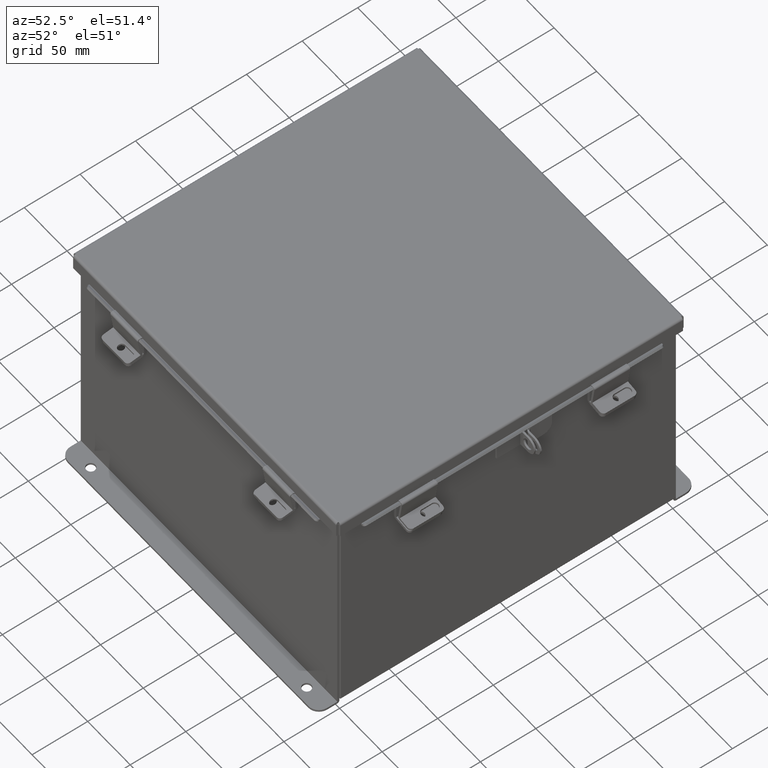
[diagram: clean part render]
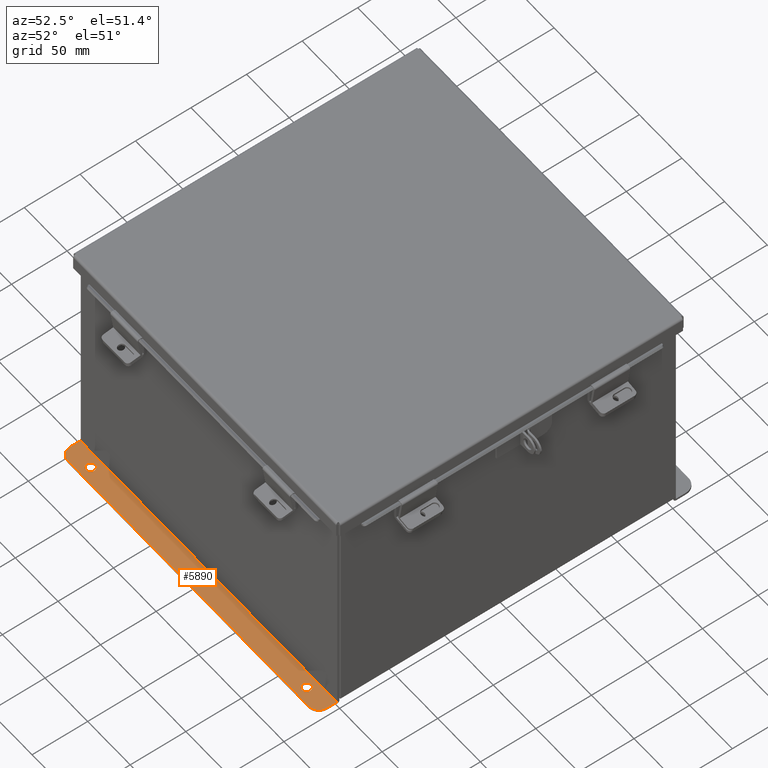
[diagram: same view with one face highlighted and labeled with its STEP entity id]
A machine part, auxiliary view. The second image highlights one B-rep face of the part: STEP entity #5890.
In plain terms, the highlighted planar face has unit normal (0, -0, 1).
Its self-contained STEP definition (entity closure, byte-faithful):
#396 = ORIENTED_EDGE ( 'NONE', *, *, #2116, .T. ) ;
#419 = CARTESIAN_POINT ( 'NONE',  ( -4.987800000000000900, 0.5188000000000003700, -4.112300000000001200 ) ) ;
#668 = VERTEX_POINT ( 'NONE', #15378 ) ;
#686 = DIRECTION ( 'NONE',  ( 0.0000000000000000000, -1.000000000000000000, 4.370956789862820400E-015 ) ) ;
#917 = ORIENTED_EDGE ( 'NONE', *, *, #16845, .T. ) ;
#1060 = CARTESIAN_POINT ( 'NONE',  ( 5.925299999999999100, 0.7378000000000002300, -4.112300000000002100 ) ) ;
#1124 = CIRCLE ( 'NONE', #11407, 0.3750000000000000600 ) ;
#1273 = EDGE_CURVE ( 'NONE', #17231, #668, #1124, .T. ) ;
#1427 = EDGE_CURVE ( 'NONE', #8635, #668, #6636, .T. ) ;
#1728 = CARTESIAN_POINT ( 'NONE',  ( 5.925299999999999100, 1.577762228432578300E-017, -4.112299999999999400 ) ) ;
#1750 = VERTEX_POINT ( 'NONE', #6197 ) ;
#1963 = ORIENTED_EDGE ( 'NONE', *, *, #1273, .T. ) ;
#2116 = EDGE_CURVE ( 'NONE', #7302, #9590, #2702, .T. ) ;
#2206 = VERTEX_POINT ( 'NONE', #12632 ) ;
#2702 = CIRCLE ( 'NONE', #3721, 0.1560000000000001700 ) ;
#2837 = EDGE_LOOP ( 'NONE', ( #7515, #917 ) ) ;
#2937 = AXIS2_PLACEMENT_3D ( 'NONE', #12196, #6806, #16270 ) ;
#2966 = ORIENTED_EDGE ( 'NONE', *, *, #1427, .F. ) ;
#2995 = CARTESIAN_POINT ( 'NONE',  ( -4.987800000000000900, 0.3628000000000001800, -4.112300000000001200 ) ) ;
#3101 = DIRECTION ( 'NONE',  ( -0.0000000000000000000, -1.000000000000000000, 3.702694488566362300E-015 ) ) ;
#3262 = VERTEX_POINT ( 'NONE', #12844 ) ;
#3549 = AXIS2_PLACEMENT_3D ( 'NONE', #6160, #15623, #7526 ) ;
#3721 = AXIS2_PLACEMENT_3D ( 'NONE', #12461, #4339, #13798 ) ;
#3820 = CARTESIAN_POINT ( 'NONE',  ( 4.987799999999998200, 0.2067999999999999800, -4.112300000000000300 ) ) ;
#4059 = EDGE_CURVE ( 'NONE', #9590, #7302, #15152, .T. ) ;
#4339 = DIRECTION ( 'NONE',  ( -0.0000000000000000000, -3.702694488566362300E-015, -1.000000000000000000 ) ) ;
#4368 = DIRECTION ( 'NONE',  ( 0.0000000000000000000, -1.000000000000000000, 3.502369222646487400E-015 ) ) ;
#5230 = FACE_BOUND ( 'NONE', #6625, .T. ) ;
#5837 = DIRECTION ( 'NONE',  ( 0.0000000000000000000, 3.702694488566362300E-015, 1.000000000000000000 ) ) ;
#5866 = CIRCLE ( 'NONE', #11917, 0.3750000000000000600 ) ;
#5890 = ADVANCED_FACE ( 'NONE', ( #16037, #5230, #12009 ), #8091, .T. ) ;
#6160 = CARTESIAN_POINT ( 'NONE',  ( -4.987800000000000900, 0.3628000000000001800, -4.112300000000001200 ) ) ;
#6197 = CARTESIAN_POINT ( 'NONE',  ( -4.987800000000000900, 0.2067999999999999800, -4.112300000000000300 ) ) ;
#6314 = CARTESIAN_POINT ( 'NONE',  ( 4.987799999999998200, 0.3628000000000001800, -4.112300000000001200 ) ) ;
#6625 = EDGE_LOOP ( 'NONE', ( #396, #10080 ) ) ;
#6636 = LINE ( 'NONE', #15772, #13818 ) ;
#6806 = DIRECTION ( 'NONE',  ( 0.0000000000000000000, 3.702694488566362300E-015, 1.000000000000000000 ) ) ;
#6909 = EDGE_CURVE ( 'NONE', #2206, #10669, #5866, .T. ) ;
#6982 = CARTESIAN_POINT ( 'NONE',  ( -5.550299999999999100, 0.7378000000000002300, -4.112300000000002100 ) ) ;
#7302 = VERTEX_POINT ( 'NONE', #13318 ) ;
#7430 = AXIS2_PLACEMENT_3D ( 'NONE', #2995, #12487, #4368 ) ;
#7515 = ORIENTED_EDGE ( 'NONE', *, *, #12546, .T. ) ;
#7526 = DIRECTION ( 'NONE',  ( 0.0000000000000000000, -1.000000000000000000, 3.502369222646487400E-015 ) ) ;
#7661 = DIRECTION ( 'NONE',  ( 0.0000000000000000000, -1.000000000000000000, 3.502369222646487400E-015 ) ) ;
#8091 = PLANE ( 'NONE',  #2937 ) ;
#8535 = EDGE_LOOP ( 'NONE', ( #9795, #1963, #2966, #14098, #12624, #16799 ) ) ;
#8635 = VERTEX_POINT ( 'NONE', #16983 ) ;
#8799 = DIRECTION ( 'NONE',  ( 0.0000000000000000000, 3.702694488566362300E-015, 1.000000000000000000 ) ) ;
#9491 = VECTOR ( 'NONE', #3101, 39.37007874015748100 ) ;
#9590 = VERTEX_POINT ( 'NONE', #3820 ) ;
#9795 = ORIENTED_EDGE ( 'NONE', *, *, #10183, .F. ) ;
#9926 = LINE ( 'NONE', #1728, #9491 ) ;
#10007 = CIRCLE ( 'NONE', #7430, 0.1560000000000001700 ) ;
#10080 = ORIENTED_EDGE ( 'NONE', *, *, #4059, .T. ) ;
#10183 = EDGE_CURVE ( 'NONE', #17231, #10669, #15486, .T. ) ;
#10185 = CARTESIAN_POINT ( 'NONE',  ( 5.925299999999999100, 0.01300000000000010700, -4.112299999999999400 ) ) ;
#10669 = VERTEX_POINT ( 'NONE', #11459 ) ;
#11407 = AXIS2_PLACEMENT_3D ( 'NONE', #16915, #8799, #686 ) ;
#11459 = CARTESIAN_POINT ( 'NONE',  ( 5.550299999999999100, 0.7378000000000002300, -4.112300000000002100 ) ) ;
#11462 = VECTOR ( 'NONE', #11893, 39.37007874015748100 ) ;
#11859 = EDGE_CURVE ( 'NONE', #3262, #8635, #16066, .T. ) ;
#11893 = DIRECTION ( 'NONE',  ( 1.000000000000000000, -0.0000000000000000000, -0.0000000000000000000 ) ) ;
#11917 = AXIS2_PLACEMENT_3D ( 'NONE', #13932, #5837, #15295 ) ;
#12009 = FACE_OUTER_BOUND ( 'NONE', #8535, .T. ) ;
#12196 = CARTESIAN_POINT ( 'NONE',  ( 0.0000000000000000000, -1.453418667596954200E-014, -4.112299999999999400 ) ) ;
#12461 = CARTESIAN_POINT ( 'NONE',  ( 4.987799999999998200, 0.3628000000000001800, -4.112300000000001200 ) ) ;
#12487 = DIRECTION ( 'NONE',  ( -0.0000000000000000000, -3.702694488566362300E-015, -1.000000000000000000 ) ) ;
#12546 = EDGE_CURVE ( 'NONE', #13974, #1750, #10007, .T. ) ;
#12624 = ORIENTED_EDGE ( 'NONE', *, *, #15091, .F. ) ;
#12632 = CARTESIAN_POINT ( 'NONE',  ( 5.925299999999999100, 0.3628000000000002300, -4.112300000000001200 ) ) ;
#12844 = CARTESIAN_POINT ( 'NONE',  ( 5.925299999999999100, 0.01299999999999996600, -4.112299999999999400 ) ) ;
#13318 = CARTESIAN_POINT ( 'NONE',  ( 4.987799999999998200, 0.5188000000000003700, -4.112300000000001200 ) ) ;
#13666 = CIRCLE ( 'NONE', #3549, 0.1560000000000001700 ) ;
#13798 = DIRECTION ( 'NONE',  ( 0.0000000000000000000, -1.000000000000000000, 3.502369222646487400E-015 ) ) ;
#13818 = VECTOR ( 'NONE', #17135, 39.37007874015748100 ) ;
#13932 = CARTESIAN_POINT ( 'NONE',  ( 5.550299999999999100, 0.3628000000000002300, -4.112300000000001200 ) ) ;
#13974 = VERTEX_POINT ( 'NONE', #419 ) ;
#14098 = ORIENTED_EDGE ( 'NONE', *, *, #11859, .F. ) ;
#15091 = EDGE_CURVE ( 'NONE', #2206, #3262, #9926, .T. ) ;
#15152 = CIRCLE ( 'NONE', #15281, 0.1560000000000001700 ) ;
#15281 = AXIS2_PLACEMENT_3D ( 'NONE', #6314, #15766, #7661 ) ;
#15295 = DIRECTION ( 'NONE',  ( 0.0000000000000000000, -1.000000000000000000, 4.370956789862820400E-015 ) ) ;
#15378 = CARTESIAN_POINT ( 'NONE',  ( -5.925300000000001800, 0.3628000000000002900, -4.112300000000001200 ) ) ;
#15486 = LINE ( 'NONE', #1060, #11462 ) ;
#15571 = DIRECTION ( 'NONE',  ( -1.000000000000000000, 0.0000000000000000000, 0.0000000000000000000 ) ) ;
#15623 = DIRECTION ( 'NONE',  ( -0.0000000000000000000, -3.702694488566362300E-015, -1.000000000000000000 ) ) ;
#15766 = DIRECTION ( 'NONE',  ( -0.0000000000000000000, -3.702694488566362300E-015, -1.000000000000000000 ) ) ;
#15772 = CARTESIAN_POINT ( 'NONE',  ( -5.925300000000001800, 0.7378000000000002300, -4.112300000000002100 ) ) ;
#16037 = FACE_BOUND ( 'NONE', #2837, .T. ) ;
#16066 = LINE ( 'NONE', #10185, #16932 ) ;
#16270 = DIRECTION ( 'NONE',  ( 0.0000000000000000000, -1.000000000000000000, 3.702694488566362300E-015 ) ) ;
#16799 = ORIENTED_EDGE ( 'NONE', *, *, #6909, .T. ) ;
#16845 = EDGE_CURVE ( 'NONE', #1750, #13974, #13666, .T. ) ;
#16915 = CARTESIAN_POINT ( 'NONE',  ( -5.550299999999999100, 0.3628000000000002900, -4.112300000000001200 ) ) ;
#16932 = VECTOR ( 'NONE', #15571, 39.37007874015748100 ) ;
#16983 = CARTESIAN_POINT ( 'NONE',  ( -5.925300000000000000, 0.01299999999999996600, -4.112299999999999400 ) ) ;
#17135 = DIRECTION ( 'NONE',  ( -0.0000000000000000000, 1.000000000000000000, -3.702694488566362300E-015 ) ) ;
#17231 = VERTEX_POINT ( 'NONE', #6982 ) ;